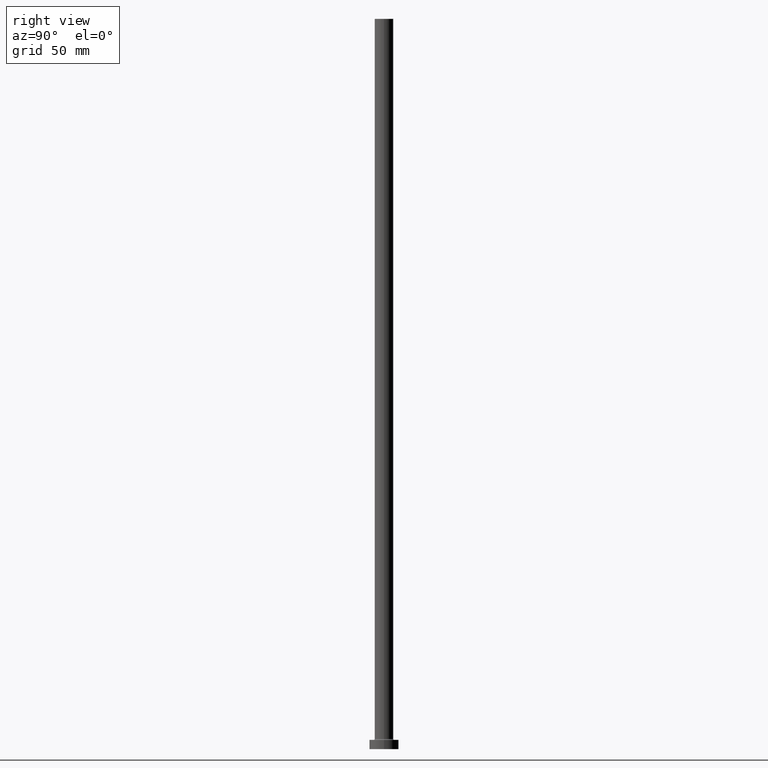
[diagram: clean part render]
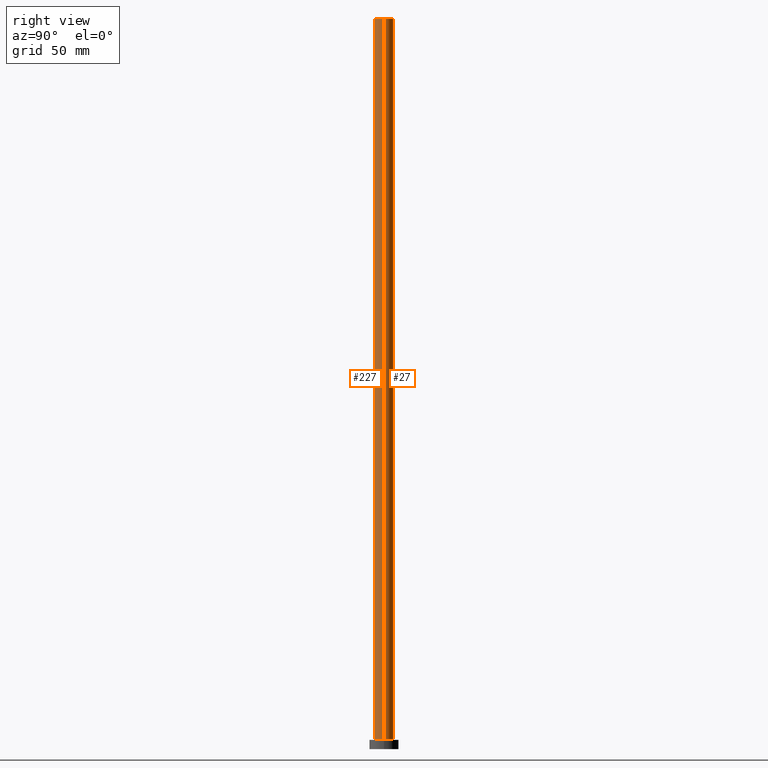
[diagram: same view with one multi-face feature highlighted, each face labeled with its STEP entity id]
A machine part, right view. The highlighted faces form ONE feature: a constant-radius fillet chain: 2 tangent blend faces with common blend radius 7 mm. The faces share edges in the B-rep.
Their STEP definitions:
[1] entity #27 (Cylinder):
#1 = CYLINDRICAL_SURFACE ( 'NONE', #26, 7.000000000000000888 ) ;
#26 = AXIS2_PLACEMENT_3D ( 'NONE', #291, #214, #427 ) ;
#27 = ADVANCED_FACE ( 'NONE', ( #33 ), #1, .T. ) ;
#33 = FACE_OUTER_BOUND ( 'NONE', #266, .T. ) ;
#48 = VECTOR ( 'NONE', #223, 1000.000000000000000 ) ;
#67 = CIRCLE ( 'NONE', #202, 7.000000000000000888 ) ;
#74 = EDGE_CURVE ( 'NONE', #349, #382, #370, .T. ) ;
#84 = ORIENTED_EDGE ( 'NONE', *, *, #248, .F. ) ;
#96 = DIRECTION ( 'NONE',  ( -0.000000000000000000, -0.000000000000000000, -1.000000000000000000 ) ) ;
#101 = ORIENTED_EDGE ( 'NONE', *, *, #137, .T. ) ;
#109 = AXIS2_PLACEMENT_3D ( 'NONE', #388, #384, #389 ) ;
#137 = EDGE_CURVE ( 'NONE', #396, #196, #67, .T. ) ;
#196 = VERTEX_POINT ( 'NONE', #375 ) ;
#202 = AXIS2_PLACEMENT_3D ( 'NONE', #321, #421, #457 ) ;
#214 = DIRECTION ( 'NONE',  ( -0.000000000000000000, -0.000000000000000000, -1.000000000000000000 ) ) ;
#223 = DIRECTION ( 'NONE',  ( -0.000000000000000000, -0.000000000000000000, -1.000000000000000000 ) ) ;
#248 = EDGE_CURVE ( 'NONE', #382, #196, #408, .T. ) ;
#266 = EDGE_LOOP ( 'NONE', ( #404, #380, #101, #84 ) ) ;
#291 = CARTESIAN_POINT ( 'NONE',  ( 0.000000000000000000, 0.000000000000000000, 550.0000000000000000 ) ) ;
#292 = CARTESIAN_POINT ( 'NONE',  ( 7.000000000000000888, 8.572527594031474176E-16, 550.0000000000000000 ) ) ;
#309 = CARTESIAN_POINT ( 'NONE',  ( -7.000000000000000888, 0.000000000000000000, 550.0000000000000000 ) ) ;
#321 = CARTESIAN_POINT ( 'NONE',  ( 0.000000000000000000, 0.000000000000000000, 7.700000000000040146 ) ) ;
#330 = CARTESIAN_POINT ( 'NONE',  ( 7.000000000000000888, 8.572527594031474176E-16, 550.0000000000000000 ) ) ;
#349 = VERTEX_POINT ( 'NONE', #292 ) ;
#353 = EDGE_CURVE ( 'NONE', #349, #396, #426, .T. ) ;
#370 = CIRCLE ( 'NONE', #109, 7.000000000000000888 ) ;
#375 = CARTESIAN_POINT ( 'NONE',  ( -7.000000000000000888, 0.000000000000000000, 7.700000000000040146 ) ) ;
#380 = ORIENTED_EDGE ( 'NONE', *, *, #353, .T. ) ;
#382 = VERTEX_POINT ( 'NONE', #397 ) ;
#384 = DIRECTION ( 'NONE',  ( 0.000000000000000000, 0.000000000000000000, 1.000000000000000000 ) ) ;
#388 = CARTESIAN_POINT ( 'NONE',  ( 0.000000000000000000, 0.000000000000000000, 550.0000000000000000 ) ) ;
#389 = DIRECTION ( 'NONE',  ( 1.000000000000000000, 0.000000000000000000, 0.000000000000000000 ) ) ;
#396 = VERTEX_POINT ( 'NONE', #432 ) ;
#397 = CARTESIAN_POINT ( 'NONE',  ( -7.000000000000000888, 0.000000000000000000, 550.0000000000000000 ) ) ;
#404 = ORIENTED_EDGE ( 'NONE', *, *, #74, .F. ) ;
#408 = LINE ( 'NONE', #309, #438 ) ;
#421 = DIRECTION ( 'NONE',  ( 0.000000000000000000, 0.000000000000000000, 1.000000000000000000 ) ) ;
#426 = LINE ( 'NONE', #330, #48 ) ;
#427 = DIRECTION ( 'NONE',  ( -1.000000000000000000, 0.000000000000000000, 0.000000000000000000 ) ) ;
#432 = CARTESIAN_POINT ( 'NONE',  ( 7.000000000000000888, 8.572527594031474176E-16, 7.700000000000040146 ) ) ;
#438 = VECTOR ( 'NONE', #96, 1000.000000000000000 ) ;
#457 = DIRECTION ( 'NONE',  ( 1.000000000000000000, 0.000000000000000000, 0.000000000000000000 ) ) ;
[2] entity #227 (Cylinder):
#4 = ORIENTED_EDGE ( 'NONE', *, *, #81, .T. ) ;
#20 = ORIENTED_EDGE ( 'NONE', *, *, #248, .T. ) ;
#25 = FACE_OUTER_BOUND ( 'NONE', #411, .T. ) ;
#48 = VECTOR ( 'NONE', #223, 1000.000000000000000 ) ;
#81 = EDGE_CURVE ( 'NONE', #196, #396, #184, .T. ) ;
#96 = DIRECTION ( 'NONE',  ( -0.000000000000000000, -0.000000000000000000, -1.000000000000000000 ) ) ;
#111 = DIRECTION ( 'NONE',  ( 0.000000000000000000, 0.000000000000000000, 1.000000000000000000 ) ) ;
#135 = DIRECTION ( 'NONE',  ( 0.000000000000000000, 0.000000000000000000, 1.000000000000000000 ) ) ;
#143 = CARTESIAN_POINT ( 'NONE',  ( 0.000000000000000000, 0.000000000000000000, 7.700000000000040146 ) ) ;
#150 = CARTESIAN_POINT ( 'NONE',  ( 0.000000000000000000, 0.000000000000000000, 550.0000000000000000 ) ) ;
#181 = DIRECTION ( 'NONE',  ( 1.000000000000000000, 0.000000000000000000, 0.000000000000000000 ) ) ;
#184 = CIRCLE ( 'NONE', #351, 7.000000000000000888 ) ;
#196 = VERTEX_POINT ( 'NONE', #375 ) ;
#223 = DIRECTION ( 'NONE',  ( -0.000000000000000000, -0.000000000000000000, -1.000000000000000000 ) ) ;
#227 = ADVANCED_FACE ( 'NONE', ( #25 ), #418, .T. ) ;
#229 = AXIS2_PLACEMENT_3D ( 'NONE', #150, #111, #181 ) ;
#245 = DIRECTION ( 'NONE',  ( 1.000000000000000000, 0.000000000000000000, 0.000000000000000000 ) ) ;
#248 = EDGE_CURVE ( 'NONE', #382, #196, #408, .T. ) ;
#292 = CARTESIAN_POINT ( 'NONE',  ( 7.000000000000000888, 8.572527594031474176E-16, 550.0000000000000000 ) ) ;
#309 = CARTESIAN_POINT ( 'NONE',  ( -7.000000000000000888, 0.000000000000000000, 550.0000000000000000 ) ) ;
#330 = CARTESIAN_POINT ( 'NONE',  ( 7.000000000000000888, 8.572527594031474176E-16, 550.0000000000000000 ) ) ;
#341 = CARTESIAN_POINT ( 'NONE',  ( 0.000000000000000000, 0.000000000000000000, 550.0000000000000000 ) ) ;
#348 = DIRECTION ( 'NONE',  ( -1.000000000000000000, 0.000000000000000000, 0.000000000000000000 ) ) ;
#349 = VERTEX_POINT ( 'NONE', #292 ) ;
#351 = AXIS2_PLACEMENT_3D ( 'NONE', #143, #135, #245 ) ;
#353 = EDGE_CURVE ( 'NONE', #349, #396, #426, .T. ) ;
#354 = ORIENTED_EDGE ( 'NONE', *, *, #353, .F. ) ;
#356 = ORIENTED_EDGE ( 'NONE', *, *, #461, .F. ) ;
#375 = CARTESIAN_POINT ( 'NONE',  ( -7.000000000000000888, 0.000000000000000000, 7.700000000000040146 ) ) ;
#376 = AXIS2_PLACEMENT_3D ( 'NONE', #341, #443, #348 ) ;
#382 = VERTEX_POINT ( 'NONE', #397 ) ;
#396 = VERTEX_POINT ( 'NONE', #432 ) ;
#397 = CARTESIAN_POINT ( 'NONE',  ( -7.000000000000000888, 0.000000000000000000, 550.0000000000000000 ) ) ;
#408 = LINE ( 'NONE', #309, #438 ) ;
#411 = EDGE_LOOP ( 'NONE', ( #354, #356, #20, #4 ) ) ;
#418 = CYLINDRICAL_SURFACE ( 'NONE', #376, 7.000000000000000888 ) ;
#426 = LINE ( 'NONE', #330, #48 ) ;
#428 = CIRCLE ( 'NONE', #229, 7.000000000000000888 ) ;
#432 = CARTESIAN_POINT ( 'NONE',  ( 7.000000000000000888, 8.572527594031474176E-16, 7.700000000000040146 ) ) ;
#438 = VECTOR ( 'NONE', #96, 1000.000000000000000 ) ;
#443 = DIRECTION ( 'NONE',  ( -0.000000000000000000, -0.000000000000000000, -1.000000000000000000 ) ) ;
#461 = EDGE_CURVE ( 'NONE', #382, #349, #428, .T. ) ;